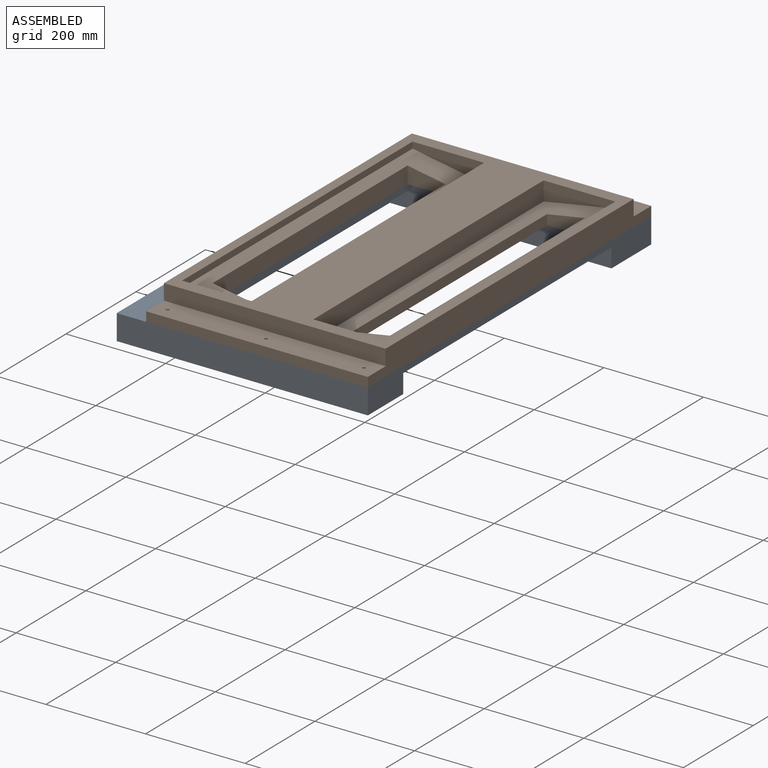
[diagram: assembled view]
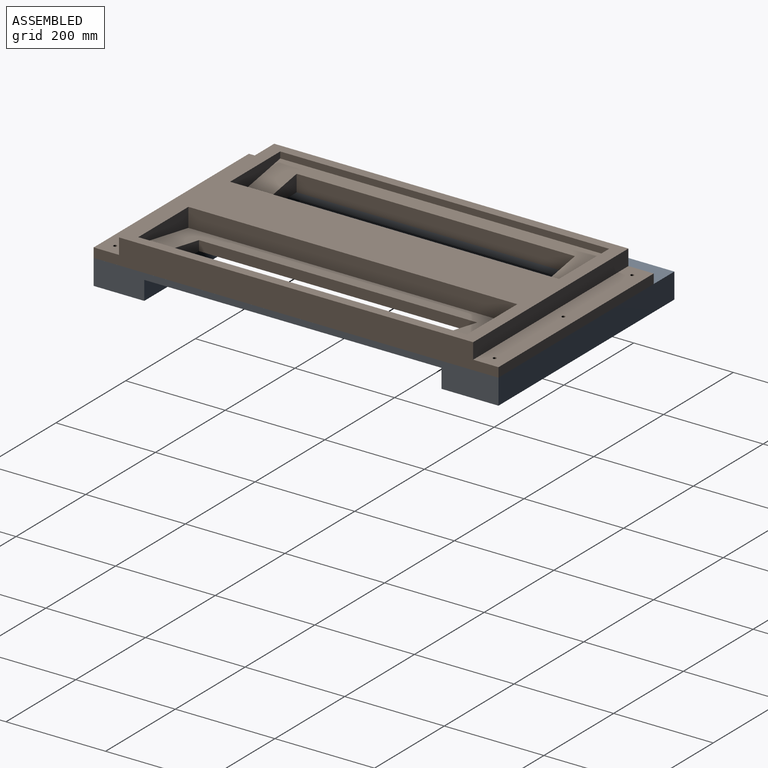
[diagram: assembled view, second angle]
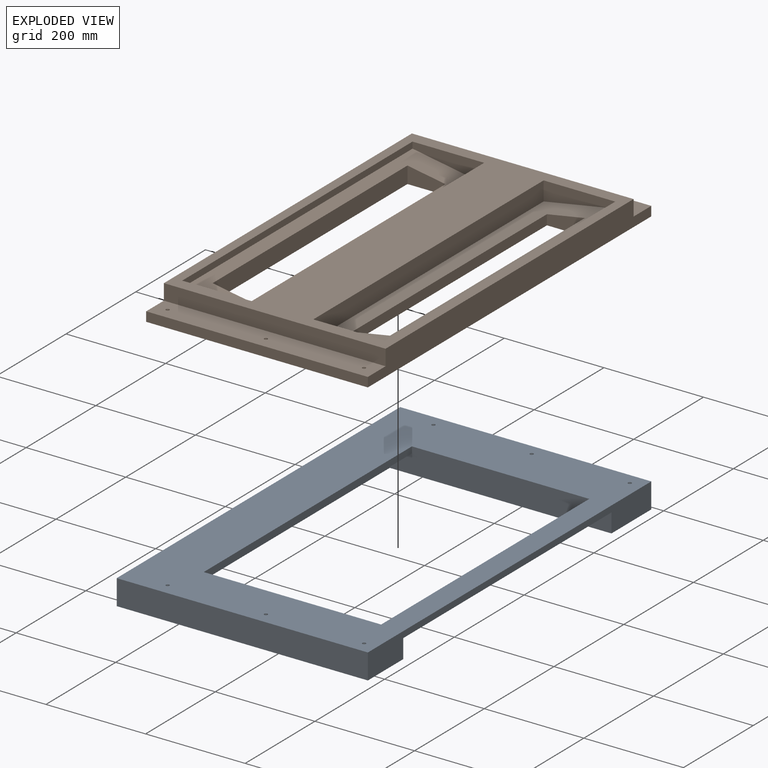
[diagram: exploded view]
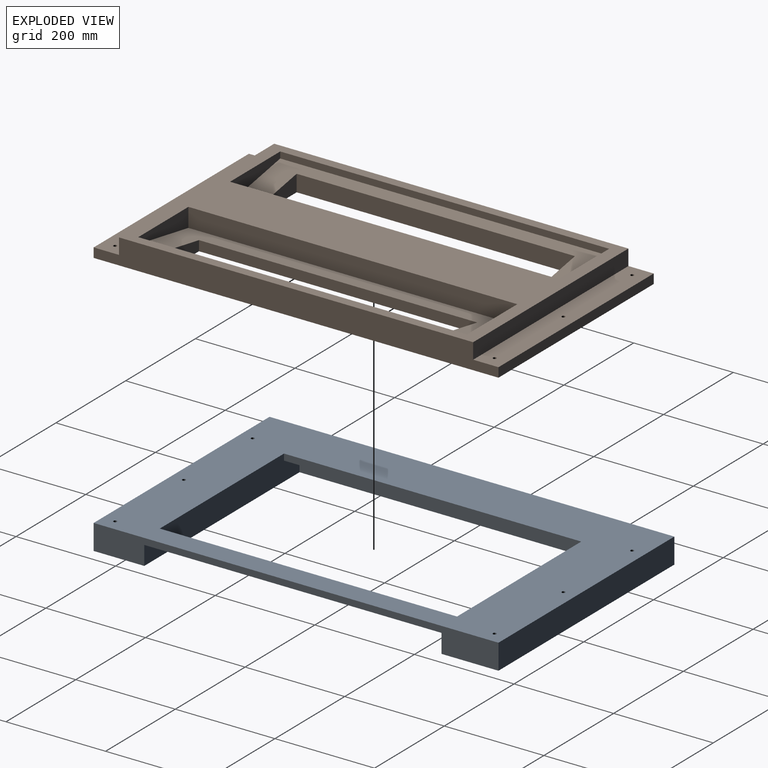
[diagram: exploded view, second angle]
ASSEMBLY  parts=2 mates=2
PART A: 19 faces, bbox 504.3x812.8x50.8 mm
  f0: plane 812.8x504.34mm, normal (0,0,-1), area 197047.8mm2, adj f2,f3,f4,f6,f7,f9,f10,f11
  f1: plane 812.8x504.34mm, normal (0,0,1), area 143983.3mm2, adj f2,f3,f4,f6,f7,f11,f12,f13
  f2: plane 504.34x50.8mm, normal (0,1,0), area 25620.6mm2, adj f0,f1,f3,f18
  f3: plane 812.8x50.8mm, normal (-1,0,0), area 18548.4mm2, adj f0,f1,f2,f4,f6,f7,f8
  f4: plane 504.34x50.8mm, normal (0,-1,0), area 25620.6mm2, adj f0,f1,f3,f18
  f5: plane 596.9x44.45mm, normal (0,0,1), area 26532.2mm2, adj f6,f7,f10,f17
  f6: plane 445.16x50.8mm, normal (0,-1,0), area 21485.1mm2, adj f0,f1,f3,f5,f8,f9,f10,f17
  f7: plane 445.16x50.8mm, normal (0,1,0), area 21485.1mm2, adj f0,f1,f3,f5,f8,f9,f10,f17
  f8: plane 596.9x44.45mm, normal (0,0,1), area 26532.2mm2, adj f3,f6,f7,f9
  f9: plane 596.9x12.7mm, normal (1,0,0), area 7580.6mm2, adj f0,f6,f7,f8
  f10: plane 596.9x12.7mm, normal (-1,0,0), area 7580.6mm2, adj f0,f5,f6,f7
  f11: cylinder r=3.49mm len=50.8mm, axis (0,0,1), area 1114.8mm2, adj f0,f1
  f12: cylinder r=3.49mm len=50.8mm, axis (0,0,1), area 1114.8mm2, adj f0,f1
  f13: cylinder r=3.49mm len=50.8mm, axis (0,0,1), area 1114.8mm2, adj f0,f1
  f14: cylinder r=3.49mm len=50.8mm, axis (0,0,1), area 1114.8mm2, adj f0,f1
  f15: cylinder r=3.49mm len=50.8mm, axis (0,0,1), area 1114.8mm2, adj f0,f1
  f16: cylinder r=3.49mm len=50.8mm, axis (0,0,1), area 1114.8mm2, adj f0,f1
  f17: plane 596.9x38.1mm, normal (-1,0,0), area 22741.9mm2, adj f1,f5,f6,f7
  f18: plane 812.8x50.8mm, normal (1,0,0), area 41290.2mm2, adj f0,f1,f2,f4
PART B: 34 faces, bbox 445.2x812.8x50.8 mm
  f0: plane 445.15x31.75mm, normal (0,1,0), area 14133.6mm2, adj f5,f6,f14,f25
  f1: plane 812.8x445.15mm, normal (0,0,-1), area 276428mm2, adj f6,f7,f8,f9,f10,f14,f15,f16
  f2: plane 660.4x143.83mm, normal (0.17,0,0.98), area 53214mm2, adj f3,f4,f7,f8,f9,f10,f21,f22
  f3: plane 660.4x38.1mm, normal (-1,0,0), area 25161.2mm2, adj f2,f5,f21,f22
  f4: plane 660.4x12.74mm, normal (1,0,0), area 8412.6mm2, adj f2,f5,f21,f22
  f5: plane 711.2x445.15mm, normal (0,0,1), area 126619.4mm2, adj f0,f3,f4,f6,f12,f13,f14,f19
  f6: plane 812.8x50.8mm, normal (-1,0,0), area 38064.4mm2, adj f0,f1,f5,f20,f24,f25,f26,f27
  f7: plane 76.2x33.58mm, normal (0,1,0), area 2047.1mm2, adj f1,f2,f8,f10
  f8: plane 558.8x33.58mm, normal (1,0,0), area 18766mm2, adj f1,f2,f7,f9
  f9: plane 76.2x33.58mm, normal (0,-1,0), area 2047.1mm2, adj f1,f2,f8,f10
  f10: plane 558.8x20.15mm, normal (-1,0,0), area 11257.9mm2, adj f1,f2,f7,f9
  f11: plane 660.4x143.83mm, normal (-0.17,0,0.98), area 53214mm2, adj f12,f13,f15,f16,f17,f18,f19,f23
  f12: plane 660.4x38.1mm, normal (1,0,0), area 25161.2mm2, adj f5,f11,f19,f23
  f13: plane 660.4x12.74mm, normal (-1,0,0), area 8412.6mm2, adj f5,f11,f19,f23
  f14: plane 812.8x50.8mm, normal (1,0,0), area 38064.4mm2, adj f0,f1,f5,f20,f24,f25,f26,f27
  f15: plane 76.2x33.58mm, normal (0,1,0), area 2047.1mm2, adj f1,f11,f16,f18
  f16: plane 558.8x33.58mm, normal (-1,0,0), area 18766mm2, adj f1,f11,f15,f17
  f17: plane 76.2x33.58mm, normal (0,-1,0), area 2047.1mm2, adj f1,f11,f16,f18
  f18: plane 558.8x20.15mm, normal (1,0,0), area 11257.9mm2, adj f1,f11,f15,f17
  f19: plane 143.83x38.1mm, normal (0,1,0), area 3656.1mm2, adj f5,f11,f12,f13
  f20: plane 445.15x31.75mm, normal (0,-1,0), area 14133.6mm2, adj f5,f6,f14,f27
  f21: plane 143.83x38.1mm, normal (0,1,0), area 3656.1mm2, adj f2,f3,f4,f5
  f22: plane 143.83x38.1mm, normal (0,-1,0), area 3656.1mm2, adj f2,f3,f4,f5
  f23: plane 143.83x38.1mm, normal (0,-1,0), area 3656.1mm2, adj f5,f11,f12,f13
  f24: plane 445.15x19.05mm, normal (0,1,0), area 8480.1mm2, adj f1,f6,f14,f25
  f25: plane 445.15x50.8mm, normal (0,0,1), area 22498.7mm2, adj f0,f6,f14,f24,f31,f32,f33
  f26: plane 445.15x19.05mm, normal (0,-1,0), area 8480.1mm2, adj f1,f6,f14,f27
  f27: plane 445.15x50.8mm, normal (0,0,1), area 22498.7mm2, adj f6,f14,f20,f26,f28,f29,f30
  f28: cylinder r=3.49mm len=19.05mm, axis (0,0,1), area 418mm2, adj f1,f27
  f29: cylinder r=3.49mm len=19.05mm, axis (0,0,1), area 418mm2, adj f1,f27
  f30: cylinder r=3.49mm len=19.05mm, axis (0,0,1), area 418mm2, adj f1,f27
  f31: cylinder r=3.49mm len=19.05mm, axis (0,0,1), area 418mm2, adj f1,f25
  f32: cylinder r=3.49mm len=19.05mm, axis (0,0,1), area 418mm2, adj f1,f25
  f33: cylinder r=3.49mm len=19.05mm, axis (0,0,1), area 418mm2, adj f1,f25
PLACE A rot(axis=(0,-1,0),180deg) t=(-24.5,-38.94,167.6)mm
PLACE B rot(axis=(0,1,0),0deg) t=(-65.15,-38.94,187.96)mm
MATE planar B.f1 <-> A.f0  axis (0,0,-1) through (-24.51,-38.94,167.6)mm
MATE cylindrical B.f28 <-> A.f12  axis (0,0,1) through (-221.68,-419.94,167.6)mm
